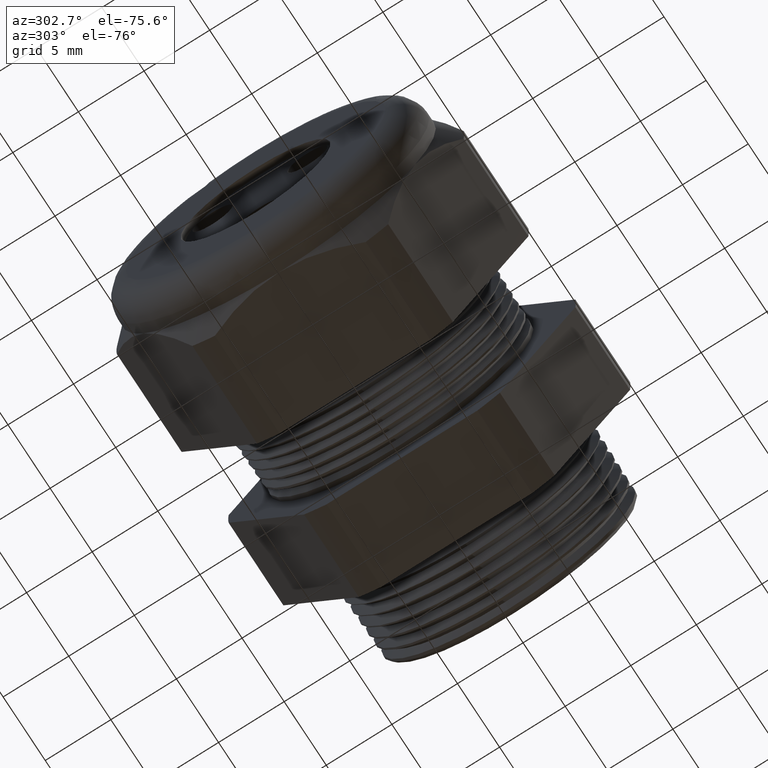
[diagram: clean part render]
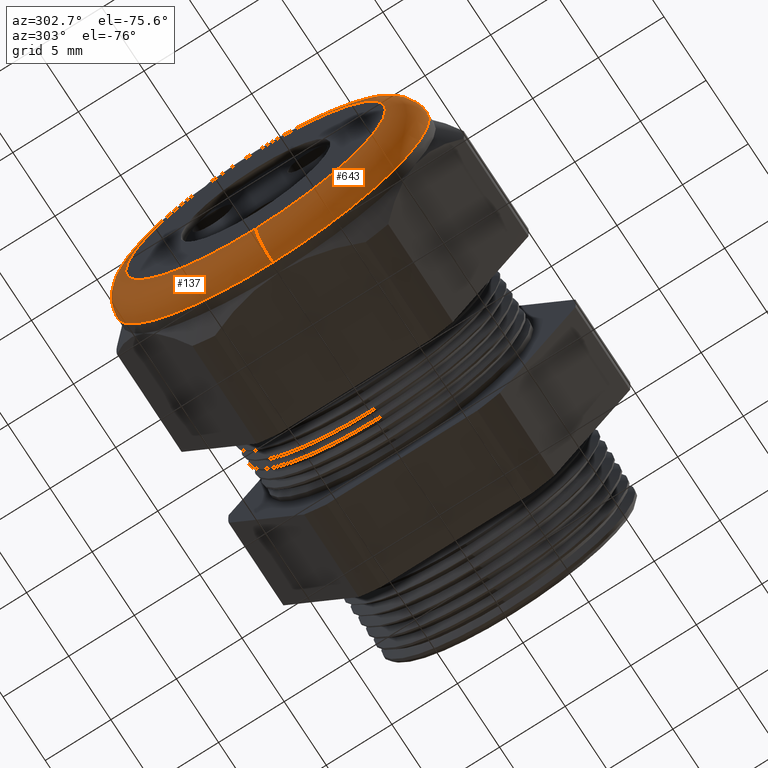
[diagram: same view with one multi-face feature highlighted, each face labeled with its STEP entity id]
A machine part, auxiliary view. The highlighted faces form ONE feature: a constant-radius fillet chain: 2 tangent blend faces with common blend radius 2.032 mm. The faces share edges in the B-rep.
Their STEP definitions:
[1] entity #643 (Torus):
#121 = EDGE_CURVE ( 'NONE', #136, #130, #1301, .T. ) ;
#127 = VERTEX_POINT ( 'NONE', #1350 ) ;
#130 = VERTEX_POINT ( 'NONE', #1349 ) ;
#136 = VERTEX_POINT ( 'NONE', #1332 ) ;
#139 = EDGE_CURVE ( 'NONE', #127, #141, #1325, .T. ) ;
#141 = VERTEX_POINT ( 'NONE', #1385 ) ;
#160 = EDGE_CURVE ( 'NONE', #136, #127, #1361, .T. ) ;
#173 = EDGE_CURVE ( 'NONE', #141, #130, #1406, .T. ) ;
#643 = ADVANCED_FACE ( 'NONE', ( #2262 ), #2260, .T. ) ;
#644 = ORIENTED_EDGE ( 'NONE', *, *, #139, .F. ) ;
#645 = ORIENTED_EDGE ( 'NONE', *, *, #160, .F. ) ;
#646 = ORIENTED_EDGE ( 'NONE', *, *, #121, .T. ) ;
#647 = ORIENTED_EDGE ( 'NONE', *, *, #173, .F. ) ;
#664 = EDGE_LOOP ( 'NONE', ( #644, #645, #646, #647 ) ) ;
#1298 = DIRECTION ( 'NONE',  ( 0.0000000000000000000, 0.0000000000000000000, -1.000000000000000000 ) ) ;
#1299 = DIRECTION ( 'NONE',  ( 0.0000000000000000000, -1.000000000000000000, 0.0000000000000000000 ) ) ;
#1300 = AXIS2_PLACEMENT_3D ( 'NONE', #1306, #1299, #1298 ) ;
#1301 = CIRCLE ( 'NONE', #1300, 0.07999999999999996000 ) ;
#1306 = CARTESIAN_POINT ( 'NONE',  ( -1.169999999999999700, 0.0000000000000000000, 0.3899999999999999600 ) ) ;
#1325 = CIRCLE ( 'NONE', #1389, 0.07999999999999996000 ) ;
#1332 = CARTESIAN_POINT ( 'NONE',  ( -1.169999999999999700, 5.755839955992558400E-017, 0.4699999999999999200 ) ) ;
#1349 = CARTESIAN_POINT ( 'NONE',  ( -1.249999999999999800, 0.0000000000000000000, 0.3899999999999999600 ) ) ;
#1350 = CARTESIAN_POINT ( 'NONE',  ( -1.169999999999999700, 0.0000000000000000000, -0.4699999999999999200 ) ) ;
#1357 = DIRECTION ( 'NONE',  ( 0.0000000000000000000, 0.0000000000000000000, 1.000000000000000000 ) ) ;
#1358 = DIRECTION ( 'NONE',  ( 1.000000000000000000, 0.0000000000000000000, 0.0000000000000000000 ) ) ;
#1359 = CARTESIAN_POINT ( 'NONE',  ( -1.169999999999999700, 0.0000000000000000000, 0.0000000000000000000 ) ) ;
#1360 = AXIS2_PLACEMENT_3D ( 'NONE', #1359, #1358, #1357 ) ;
#1361 = CIRCLE ( 'NONE', #1360, 0.4699999999999999200 ) ;
#1385 = CARTESIAN_POINT ( 'NONE',  ( -1.249999999999999800, 5.265981236333617600E-017, -0.3899999999999999600 ) ) ;
#1386 = DIRECTION ( 'NONE',  ( 0.0000000000000000000, -1.224646799147353900E-016, 1.000000000000000000 ) ) ;
#1387 = DIRECTION ( 'NONE',  ( 0.0000000000000000000, 1.000000000000000000, 1.224646799147353200E-016 ) ) ;
#1388 = CARTESIAN_POINT ( 'NONE',  ( -1.169999999999999700, 4.776122516674676800E-017, -0.3899999999999999600 ) ) ;
#1389 = AXIS2_PLACEMENT_3D ( 'NONE', #1388, #1387, #1386 ) ;
#1402 = DIRECTION ( 'NONE',  ( 0.0000000000000000000, 0.0000000000000000000, 1.000000000000000000 ) ) ;
#1403 = DIRECTION ( 'NONE',  ( -1.000000000000000000, 0.0000000000000000000, 0.0000000000000000000 ) ) ;
#1404 = CARTESIAN_POINT ( 'NONE',  ( -1.249999999999999800, 0.0000000000000000000, 0.0000000000000000000 ) ) ;
#1405 = AXIS2_PLACEMENT_3D ( 'NONE', #1404, #1403, #1402 ) ;
#1406 = CIRCLE ( 'NONE', #1405, 0.3899999999999999600 ) ;
#2257 = DIRECTION ( 'NONE',  ( 0.0000000000000000000, 0.0000000000000000000, 1.000000000000000000 ) ) ;
#2258 = DIRECTION ( 'NONE',  ( -1.000000000000000000, 0.0000000000000000000, 0.0000000000000000000 ) ) ;
#2259 = AXIS2_PLACEMENT_3D ( 'NONE', #2261, #2258, #2257 ) ;
#2260 = TOROIDAL_SURFACE ( 'NONE', #2259, 0.3899999999999999600, 0.08000000000000000200 ) ;
#2261 = CARTESIAN_POINT ( 'NONE',  ( -1.169999999999999700, 0.0000000000000000000, 0.0000000000000000000 ) ) ;
#2262 = FACE_OUTER_BOUND ( 'NONE', #664, .T. ) ;
[2] entity #137 (Torus):
#121 = EDGE_CURVE ( 'NONE', #136, #130, #1301, .T. ) ;
#123 = ORIENTED_EDGE ( 'NONE', *, *, #121, .F. ) ;
#127 = VERTEX_POINT ( 'NONE', #1350 ) ;
#129 = ORIENTED_EDGE ( 'NONE', *, *, #132, .F. ) ;
#130 = VERTEX_POINT ( 'NONE', #1349 ) ;
#131 = ORIENTED_EDGE ( 'NONE', *, *, #139, .T. ) ;
#132 = EDGE_CURVE ( 'NONE', #127, #136, #1348, .T. ) ;
#133 = ORIENTED_EDGE ( 'NONE', *, *, #135, .F. ) ;
#135 = EDGE_CURVE ( 'NONE', #130, #141, #1336, .T. ) ;
#136 = VERTEX_POINT ( 'NONE', #1332 ) ;
#137 = ADVANCED_FACE ( 'NONE', ( #1331 ), #1329, .T. ) ;
#139 = EDGE_CURVE ( 'NONE', #127, #141, #1325, .T. ) ;
#141 = VERTEX_POINT ( 'NONE', #1385 ) ;
#143 = EDGE_LOOP ( 'NONE', ( #129, #131, #133, #123 ) ) ;
#1298 = DIRECTION ( 'NONE',  ( 0.0000000000000000000, 0.0000000000000000000, -1.000000000000000000 ) ) ;
#1299 = DIRECTION ( 'NONE',  ( 0.0000000000000000000, -1.000000000000000000, 0.0000000000000000000 ) ) ;
#1300 = AXIS2_PLACEMENT_3D ( 'NONE', #1306, #1299, #1298 ) ;
#1301 = CIRCLE ( 'NONE', #1300, 0.07999999999999996000 ) ;
#1306 = CARTESIAN_POINT ( 'NONE',  ( -1.169999999999999700, 0.0000000000000000000, 0.3899999999999999600 ) ) ;
#1325 = CIRCLE ( 'NONE', #1389, 0.07999999999999996000 ) ;
#1326 = DIRECTION ( 'NONE',  ( 0.0000000000000000000, 0.0000000000000000000, 1.000000000000000000 ) ) ;
#1327 = DIRECTION ( 'NONE',  ( -1.000000000000000000, 0.0000000000000000000, 0.0000000000000000000 ) ) ;
#1328 = AXIS2_PLACEMENT_3D ( 'NONE', #1330, #1327, #1326 ) ;
#1329 = TOROIDAL_SURFACE ( 'NONE', #1328, 0.3899999999999999600, 0.08000000000000000200 ) ;
#1330 = CARTESIAN_POINT ( 'NONE',  ( -1.169999999999999700, 0.0000000000000000000, 0.0000000000000000000 ) ) ;
#1331 = FACE_OUTER_BOUND ( 'NONE', #143, .T. ) ;
#1332 = CARTESIAN_POINT ( 'NONE',  ( -1.169999999999999700, 5.755839955992558400E-017, 0.4699999999999999200 ) ) ;
#1333 = DIRECTION ( 'NONE',  ( 0.0000000000000000000, 0.0000000000000000000, 1.000000000000000000 ) ) ;
#1334 = DIRECTION ( 'NONE',  ( -1.000000000000000000, 0.0000000000000000000, 0.0000000000000000000 ) ) ;
#1335 = AXIS2_PLACEMENT_3D ( 'NONE', #1341, #1334, #1333 ) ;
#1336 = CIRCLE ( 'NONE', #1335, 0.3899999999999999600 ) ;
#1341 = CARTESIAN_POINT ( 'NONE',  ( -1.249999999999999800, 0.0000000000000000000, 0.0000000000000000000 ) ) ;
#1344 = DIRECTION ( 'NONE',  ( 0.0000000000000000000, 0.0000000000000000000, 1.000000000000000000 ) ) ;
#1345 = DIRECTION ( 'NONE',  ( 1.000000000000000000, 0.0000000000000000000, 0.0000000000000000000 ) ) ;
#1346 = CARTESIAN_POINT ( 'NONE',  ( -1.169999999999999700, 0.0000000000000000000, 0.0000000000000000000 ) ) ;
#1347 = AXIS2_PLACEMENT_3D ( 'NONE', #1346, #1345, #1344 ) ;
#1348 = CIRCLE ( 'NONE', #1347, 0.4699999999999999200 ) ;
#1349 = CARTESIAN_POINT ( 'NONE',  ( -1.249999999999999800, 0.0000000000000000000, 0.3899999999999999600 ) ) ;
#1350 = CARTESIAN_POINT ( 'NONE',  ( -1.169999999999999700, 0.0000000000000000000, -0.4699999999999999200 ) ) ;
#1385 = CARTESIAN_POINT ( 'NONE',  ( -1.249999999999999800, 5.265981236333617600E-017, -0.3899999999999999600 ) ) ;
#1386 = DIRECTION ( 'NONE',  ( 0.0000000000000000000, -1.224646799147353900E-016, 1.000000000000000000 ) ) ;
#1387 = DIRECTION ( 'NONE',  ( 0.0000000000000000000, 1.000000000000000000, 1.224646799147353200E-016 ) ) ;
#1388 = CARTESIAN_POINT ( 'NONE',  ( -1.169999999999999700, 4.776122516674676800E-017, -0.3899999999999999600 ) ) ;
#1389 = AXIS2_PLACEMENT_3D ( 'NONE', #1388, #1387, #1386 ) ;